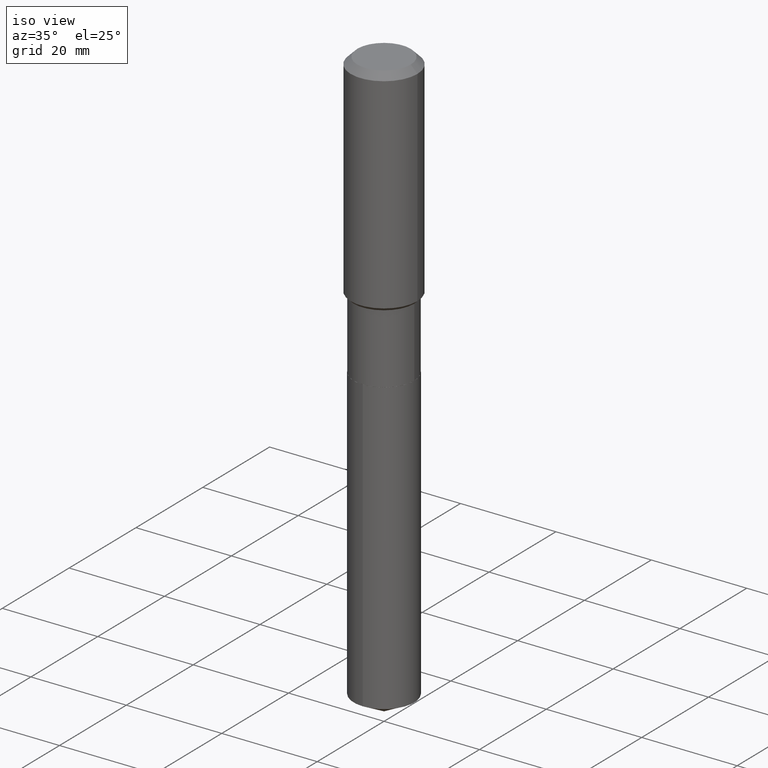
[diagram: clean part render]
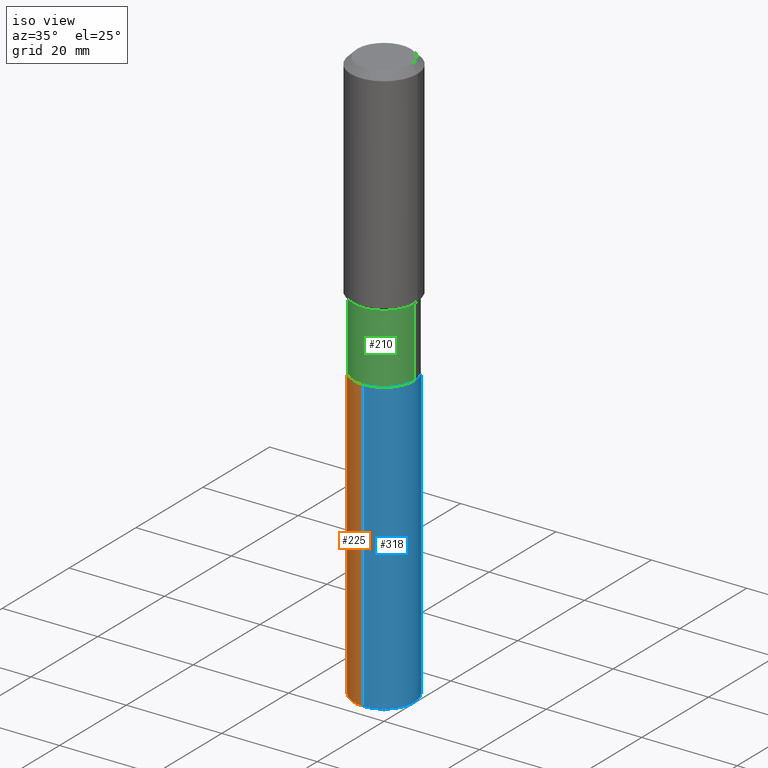
[diagram: same view with three faces highlighted in distinct colors, each labeled with its STEP entity id]
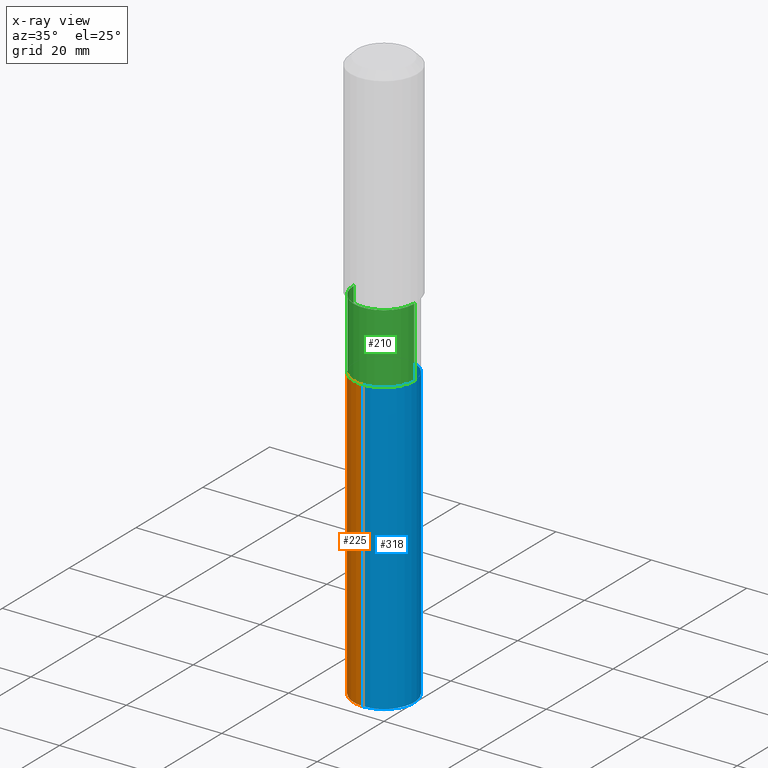
[diagram: x-ray of the same camera — body ghosted, the three highlighted faces saturated]
A machine part, iso view with three faces highlighted in distinct colors.
The next image is the same camera in x-ray (body ghosted, the three faces saturated) — at least one of them is partly hidden behind the body in this view.
Their STEP definitions:

[orange] entity #225 — the highlighted cylindrical surface (partial cylindrical patch) has radius 6.35 mm, axis along (-0, 0, 1).
#27 = VERTEX_POINT ( 'NONE', #40 ) ;
#40 = CARTESIAN_POINT ( 'NONE',  ( -1.745740669421449926E-15, -0.2500000000000165423, -4.749072642084628981 ) ) ;
#54 = CARTESIAN_POINT ( 'NONE',  ( 1.161351389919563444E-28, -1.658157790858563424E-14, -4.749072642084629869 ) ) ;
#55 = EDGE_CURVE ( 'NONE', #27, #239, #200, .T. ) ;
#59 = CARTESIAN_POINT ( 'NONE',  ( -1.745740669421508894E-15, -0.2500000000000082157, -2.349999999999998312 ) ) ;
#60 = DIRECTION ( 'NONE',  ( -2.445387480873790577E-29, 3.491597801317741832E-15, 1.000000000000000000 ) ) ;
#62 = LINE ( 'NONE', #364, #281 ) ;
#65 = ORIENTED_EDGE ( 'NONE', *, *, #55, .T. ) ;
#80 = DIRECTION ( 'NONE',  ( -2.445387480873790577E-29, 3.491597801317742226E-15, 1.000000000000000000 ) ) ;
#94 = ORIENTED_EDGE ( 'NONE', *, *, #376, .F. ) ;
#160 = FACE_OUTER_BOUND ( 'NONE', #427, .T. ) ;
#161 = DIRECTION ( 'NONE',  ( -2.445387480873790577E-29, 3.491597801317741832E-15, 1.000000000000000000 ) ) ;
#172 = EDGE_CURVE ( 'NONE', #219, #258, #62, .T. ) ;
#197 = AXIS2_PLACEMENT_3D ( 'NONE', #54, #218, #361 ) ;
#200 = LINE ( 'NONE', #207, #349 ) ;
#201 = DIRECTION ( 'NONE',  ( -6.982962677686265922E-15, -1.000000000000000000, 3.278217592397115862E-15 ) ) ;
#205 = EDGE_CURVE ( 'NONE', #219, #27, #230, .T. ) ;
#207 = CARTESIAN_POINT ( 'NONE',  ( -1.745740669421508894E-15, -0.2500000000000082157, -2.349999999999998312 ) ) ;
#218 = DIRECTION ( 'NONE',  ( -2.445387480873790577E-29, 3.491597801317742226E-15, 1.000000000000000000 ) ) ;
#219 = VERTEX_POINT ( 'NONE', #234 ) ;
#225 = ADVANCED_FACE ( 'NONE', ( #160 ), #271, .T. ) ;
#227 = CARTESIAN_POINT ( 'NONE',  ( 5.746851694535069433E-29, -8.204981146281390206E-15, -2.349999999999999201 ) ) ;
#230 = CIRCLE ( 'NONE', #197, 0.2500000000000000000 ) ;
#234 = CARTESIAN_POINT ( 'NONE',  ( 1.776356839400366033E-15, 0.2499999999999833189, -4.749072642084630758 ) ) ;
#239 = VERTEX_POINT ( 'NONE', #59 ) ;
#258 = VERTEX_POINT ( 'NONE', #294 ) ;
#271 = CYLINDRICAL_SURFACE ( 'NONE', #480, 0.2500000000000000000 ) ;
#276 = AXIS2_PLACEMENT_3D ( 'NONE', #227, #435, #410 ) ;
#281 = VECTOR ( 'NONE', #60, 39.37007874015748143 ) ;
#294 = CARTESIAN_POINT ( 'NONE',  ( 1.776356839400367216E-15, 0.2499999999999918399, -2.350000000000000089 ) ) ;
#299 = ORIENTED_EDGE ( 'NONE', *, *, #205, .T. ) ;
#349 = VECTOR ( 'NONE', #161, 39.37007874015748143 ) ;
#361 = DIRECTION ( 'NONE',  ( -6.982962677686265922E-15, -1.000000000000000000, 4.370956789862821150E-15 ) ) ;
#364 = CARTESIAN_POINT ( 'NONE',  ( 1.776356839400307657E-15, 0.2499999999999918121, -2.350000000000000089 ) ) ;
#372 = ORIENTED_EDGE ( 'NONE', *, *, #172, .F. ) ;
#376 = EDGE_CURVE ( 'NONE', #258, #239, #421, .T. ) ;
#382 = CARTESIAN_POINT ( 'NONE',  ( 5.746851694535069433E-29, -8.204981146281390206E-15, -2.349999999999999201 ) ) ;
#410 = DIRECTION ( 'NONE',  ( -6.982962677686265922E-15, -1.000000000000000000, 3.278217592397115862E-15 ) ) ;
#421 = CIRCLE ( 'NONE', #276, 0.2500000000000000000 ) ;
#427 = EDGE_LOOP ( 'NONE', ( #372, #299, #65, #94 ) ) ;
#435 = DIRECTION ( 'NONE',  ( -2.445387480873790577E-29, 3.491597801317742226E-15, 1.000000000000000000 ) ) ;
#480 = AXIS2_PLACEMENT_3D ( 'NONE', #382, #80, #201 ) ;

[blue] entity #318 — the highlighted cylindrical surface (partial cylindrical patch) has radius 6.35 mm, axis along (-0, 0, 1).
#27 = VERTEX_POINT ( 'NONE', #40 ) ;
#40 = CARTESIAN_POINT ( 'NONE',  ( -1.745740669421449926E-15, -0.2500000000000165423, -4.749072642084628981 ) ) ;
#55 = EDGE_CURVE ( 'NONE', #27, #239, #200, .T. ) ;
#57 = AXIS2_PLACEMENT_3D ( 'NONE', #309, #341, #89 ) ;
#59 = CARTESIAN_POINT ( 'NONE',  ( -1.745740669421508894E-15, -0.2500000000000082157, -2.349999999999998312 ) ) ;
#60 = DIRECTION ( 'NONE',  ( -2.445387480873790577E-29, 3.491597801317741832E-15, 1.000000000000000000 ) ) ;
#62 = LINE ( 'NONE', #364, #281 ) ;
#89 = DIRECTION ( 'NONE',  ( -6.982962677686265922E-15, -1.000000000000000000, 4.370956789862821150E-15 ) ) ;
#104 = ORIENTED_EDGE ( 'NONE', *, *, #117, .F. ) ;
#117 = EDGE_CURVE ( 'NONE', #239, #258, #463, .T. ) ;
#128 = AXIS2_PLACEMENT_3D ( 'NONE', #134, #319, #469 ) ;
#134 = CARTESIAN_POINT ( 'NONE',  ( 5.746851694535069433E-29, -8.204981146281390206E-15, -2.349999999999999201 ) ) ;
#138 = EDGE_LOOP ( 'NONE', ( #325, #244, #104, #143 ) ) ;
#143 = ORIENTED_EDGE ( 'NONE', *, *, #55, .F. ) ;
#161 = DIRECTION ( 'NONE',  ( -2.445387480873790577E-29, 3.491597801317741832E-15, 1.000000000000000000 ) ) ;
#172 = EDGE_CURVE ( 'NONE', #219, #258, #62, .T. ) ;
#200 = LINE ( 'NONE', #207, #349 ) ;
#207 = CARTESIAN_POINT ( 'NONE',  ( -1.745740669421508894E-15, -0.2500000000000082157, -2.349999999999998312 ) ) ;
#219 = VERTEX_POINT ( 'NONE', #234 ) ;
#234 = CARTESIAN_POINT ( 'NONE',  ( 1.776356839400366033E-15, 0.2499999999999833189, -4.749072642084630758 ) ) ;
#239 = VERTEX_POINT ( 'NONE', #59 ) ;
#244 = ORIENTED_EDGE ( 'NONE', *, *, #172, .T. ) ;
#258 = VERTEX_POINT ( 'NONE', #294 ) ;
#281 = VECTOR ( 'NONE', #60, 39.37007874015748143 ) ;
#294 = CARTESIAN_POINT ( 'NONE',  ( 1.776356839400367216E-15, 0.2499999999999918399, -2.350000000000000089 ) ) ;
#303 = CYLINDRICAL_SURFACE ( 'NONE', #337, 0.2500000000000000000 ) ;
#309 = CARTESIAN_POINT ( 'NONE',  ( 1.161351389919563444E-28, -1.658157790858563424E-14, -4.749072642084629869 ) ) ;
#318 = ADVANCED_FACE ( 'NONE', ( #451 ), #303, .T. ) ;
#319 = DIRECTION ( 'NONE',  ( -2.445387480873790577E-29, 3.491597801317742226E-15, 1.000000000000000000 ) ) ;
#325 = ORIENTED_EDGE ( 'NONE', *, *, #462, .T. ) ;
#330 = CARTESIAN_POINT ( 'NONE',  ( 5.746851694535069433E-29, -8.204981146281390206E-15, -2.349999999999999201 ) ) ;
#337 = AXIS2_PLACEMENT_3D ( 'NONE', #330, #402, #366 ) ;
#341 = DIRECTION ( 'NONE',  ( -2.445387480873790577E-29, 3.491597801317742226E-15, 1.000000000000000000 ) ) ;
#349 = VECTOR ( 'NONE', #161, 39.37007874015748143 ) ;
#364 = CARTESIAN_POINT ( 'NONE',  ( 1.776356839400307657E-15, 0.2499999999999918121, -2.350000000000000089 ) ) ;
#366 = DIRECTION ( 'NONE',  ( -6.982962677686265922E-15, -1.000000000000000000, 3.278217592397115862E-15 ) ) ;
#387 = CIRCLE ( 'NONE', #57, 0.2500000000000000000 ) ;
#402 = DIRECTION ( 'NONE',  ( -2.445387480873790577E-29, 3.491597801317742226E-15, 1.000000000000000000 ) ) ;
#451 = FACE_OUTER_BOUND ( 'NONE', #138, .T. ) ;
#462 = EDGE_CURVE ( 'NONE', #27, #219, #387, .T. ) ;
#463 = CIRCLE ( 'NONE', #128, 0.2500000000000000000 ) ;
#469 = DIRECTION ( 'NONE',  ( -6.982962677686265922E-15, -1.000000000000000000, 3.278217592397115862E-15 ) ) ;

[green] entity #210 — the highlighted cylindrical surface (partial cylindrical patch) has radius 6.35 mm, axis along (-0, 0, 1).
#7 = EDGE_CURVE ( 'NONE', #360, #61, #320, .T. ) ;
#16 = ORIENTED_EDGE ( 'NONE', *, *, #126, .T. ) ;
#17 = FACE_OUTER_BOUND ( 'NONE', #58, .T. ) ;
#58 = EDGE_LOOP ( 'NONE', ( #396, #430, #16, #419 ) ) ;
#61 = VERTEX_POINT ( 'NONE', #120 ) ;
#66 = DIRECTION ( 'NONE',  ( 1.000000000000000000, -6.982962677686266711E-15, 0.000000000000000000 ) ) ;
#73 = DIRECTION ( 'NONE',  ( -2.445468806185136597E-29, 3.491481338843145583E-15, 1.000000000000000000 ) ) ;
#85 = AXIS2_PLACEMENT_3D ( 'NONE', #335, #109, #66 ) ;
#105 = CARTESIAN_POINT ( 'NONE',  ( -0.2500000000000000555, -5.423950551629025389E-15, -2.349499999999999478 ) ) ;
#109 = DIRECTION ( 'NONE',  ( -2.445468806185136597E-29, 3.491481338843145583E-15, 1.000000000000000000 ) ) ;
#114 = CIRCLE ( 'NONE', #85, 0.2500000000000000000 ) ;
#120 = CARTESIAN_POINT ( 'NONE',  ( 0.2499999999999999167, -7.943120045868147316E-15, -1.774999999999999467 ) ) ;
#126 = EDGE_CURVE ( 'NONE', #403, #61, #169, .T. ) ;
#140 = CARTESIAN_POINT ( 'NONE',  ( 0.000000000000000000, 0.000000000000000000, 0.000000000000000000 ) ) ;
#146 = DIRECTION ( 'NONE',  ( -2.445468806185136877E-29, 3.491481338843145188E-15, 1.000000000000000000 ) ) ;
#150 = DIRECTION ( 'NONE',  ( 1.000000000000000000, -6.982962677686266711E-15, 4.876176775795935793E-29 ) ) ;
#167 = DIRECTION ( 'NONE',  ( 1.000000000000000000, -6.982962677686265133E-15, 0.000000000000000000 ) ) ;
#169 = LINE ( 'NONE', #315, #171 ) ;
#171 = VECTOR ( 'NONE', #464, 39.37007874015748143 ) ;
#206 = CARTESIAN_POINT ( 'NONE',  ( 4.340707130978616226E-29, -6.197379376446582216E-15, -1.774999999999999467 ) ) ;
#210 = ADVANCED_FACE ( 'NONE', ( #17 ), #327, .T. ) ;
#255 = CARTESIAN_POINT ( 'NONE',  ( 0.2500000000000000000, -9.948976075033534591E-15, -2.349499999999999478 ) ) ;
#263 = DIRECTION ( 'NONE',  ( -2.445468806185136597E-29, 3.491481338843145583E-15, 1.000000000000000000 ) ) ;
#275 = VECTOR ( 'NONE', #146, 39.37007874015748143 ) ;
#296 = LINE ( 'NONE', #443, #275 ) ;
#315 = CARTESIAN_POINT ( 'NONE',  ( 0.2499999999999999722, -1.745740669421566480E-15, 1.219044193948983808E-29 ) ) ;
#320 = CIRCLE ( 'NONE', #444, 0.2499999999999999167 ) ;
#327 = CYLINDRICAL_SURFACE ( 'NONE', #423, 0.2499999999999999722 ) ;
#329 = EDGE_CURVE ( 'NONE', #392, #360, #296, .T. ) ;
#335 = CARTESIAN_POINT ( 'NONE',  ( 5.745628960131976631E-29, -8.203235405611967914E-15, -2.349499999999999478 ) ) ;
#360 = VERTEX_POINT ( 'NONE', #378 ) ;
#378 = CARTESIAN_POINT ( 'NONE',  ( -0.2499999999999999167, -5.423950551629025389E-15, -1.774999999999999467 ) ) ;
#392 = VERTEX_POINT ( 'NONE', #105 ) ;
#396 = ORIENTED_EDGE ( 'NONE', *, *, #329, .F. ) ;
#403 = VERTEX_POINT ( 'NONE', #255 ) ;
#409 = EDGE_CURVE ( 'NONE', #392, #403, #114, .T. ) ;
#419 = ORIENTED_EDGE ( 'NONE', *, *, #7, .F. ) ;
#423 = AXIS2_PLACEMENT_3D ( 'NONE', #140, #263, #150 ) ;
#430 = ORIENTED_EDGE ( 'NONE', *, *, #409, .T. ) ;
#443 = CARTESIAN_POINT ( 'NONE',  ( -0.2499999999999999722, 1.776356839400250267E-15, -1.229733772563726305E-29 ) ) ;
#444 = AXIS2_PLACEMENT_3D ( 'NONE', #206, #73, #167 ) ;
#464 = DIRECTION ( 'NONE',  ( -2.445468806185136877E-29, 3.491481338843145188E-15, 1.000000000000000000 ) ) ;